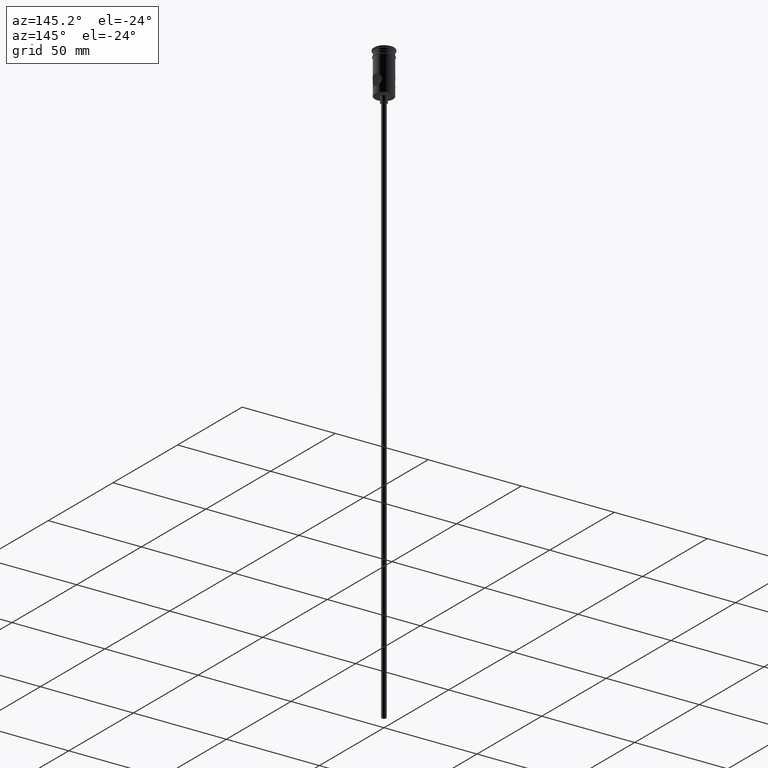
[diagram: clean part render]
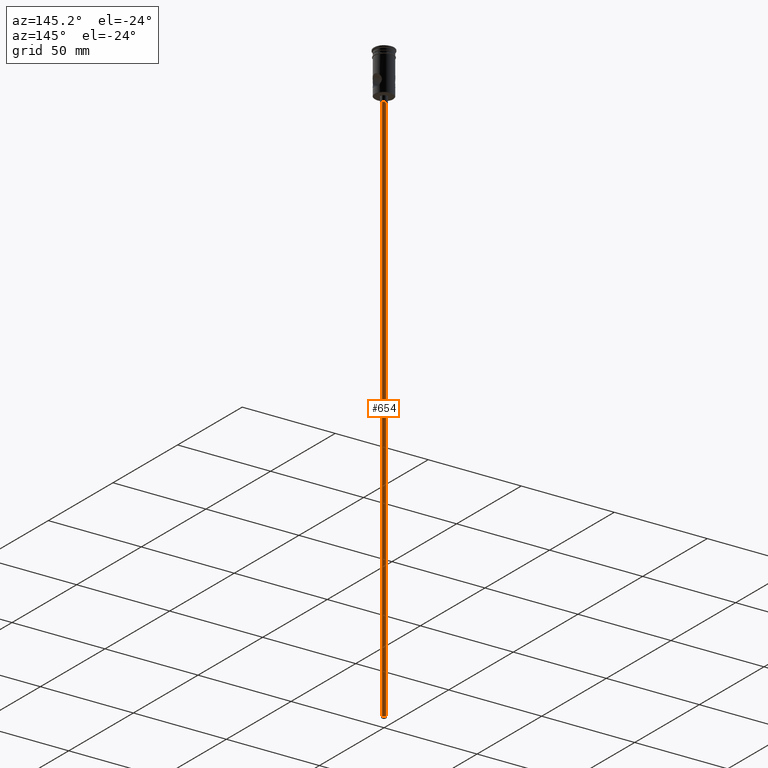
[diagram: same view with one face highlighted and labeled with its STEP entity id]
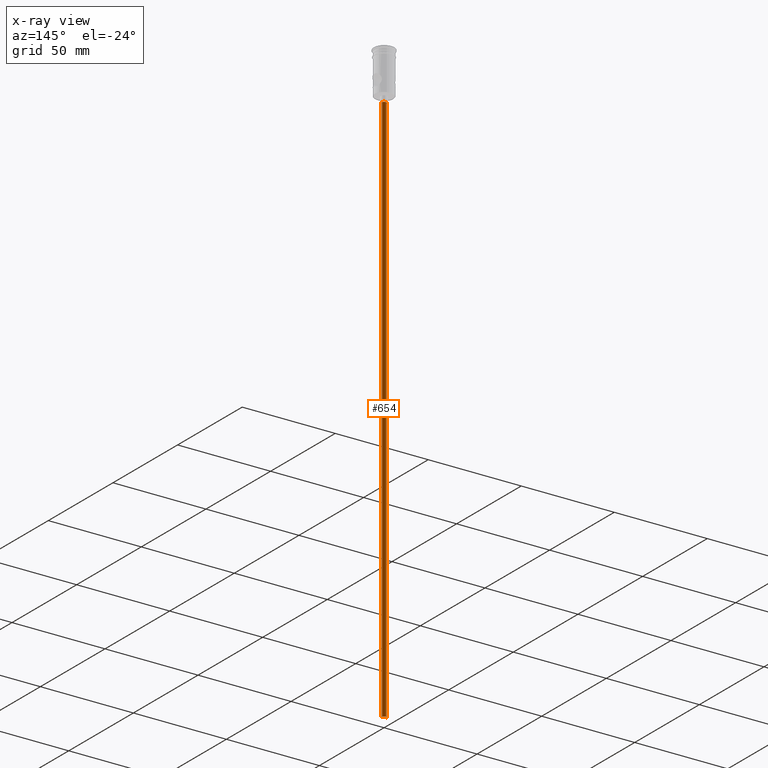
[diagram: x-ray of the same camera — body ghosted, the highlighted face saturated]
A machine part, auxiliary view. The second image highlights one B-rep face of the part: STEP entity #654.
The next image is the same camera in x-ray: the body ghosted, the highlighted face saturated — about 0% of this face is hidden behind the body in this view.
In plain terms, the highlighted cylindrical surface (edge-blend (fillet) strip) has radius 1.25 mm, axis along (-0, -0, 1).
Its self-contained STEP definition (entity closure, byte-faithful):
#20 = ORIENTED_EDGE ( 'NONE', *, *, #1388, .T. ) ;
#37 = DIRECTION ( 'NONE',  ( -0.000000000000000000, -0.000000000000000000, 1.000000000000000000 ) ) ;
#48 = CARTESIAN_POINT ( 'NONE',  ( 1.250000000000000000, 0.000000000000000000, -322.5000000000000000 ) ) ;
#76 = DIRECTION ( 'NONE',  ( 0.000000000000000000, 0.000000000000000000, -1.000000000000000000 ) ) ;
#84 = CYLINDRICAL_SURFACE ( 'NONE', #1190, 1.250000000000000000 ) ;
#99 = VECTOR ( 'NONE', #37, 1000.000000000000000 ) ;
#110 = ORIENTED_EDGE ( 'NONE', *, *, #1271, .F. ) ;
#114 = CARTESIAN_POINT ( 'NONE',  ( -1.250000000000000000, 1.530808498934191571E-16, -322.5000000000000000 ) ) ;
#164 = EDGE_CURVE ( 'NONE', #864, #1247, #537, .T. ) ;
#219 = VERTEX_POINT ( 'NONE', #415 ) ;
#232 = DIRECTION ( 'NONE',  ( -1.000000000000000000, 0.000000000000000000, 0.000000000000000000 ) ) ;
#244 = VECTOR ( 'NONE', #555, 1000.000000000000000 ) ;
#254 = EDGE_CURVE ( 'NONE', #864, #219, #260, .T. ) ;
#260 = LINE ( 'NONE', #114, #244 ) ;
#415 = CARTESIAN_POINT ( 'NONE',  ( -1.250000000000000000, 1.530808498934191571E-16, -25.50000000000000000 ) ) ;
#525 = CARTESIAN_POINT ( 'NONE',  ( 0.000000000000000000, 0.000000000000000000, -322.5000000000000000 ) ) ;
#537 = CIRCLE ( 'NONE', #1355, 1.250000000000000000 ) ;
#555 = DIRECTION ( 'NONE',  ( -0.000000000000000000, -0.000000000000000000, 1.000000000000000000 ) ) ;
#563 = ORIENTED_EDGE ( 'NONE', *, *, #254, .T. ) ;
#650 = CARTESIAN_POINT ( 'NONE',  ( 0.000000000000000000, 0.000000000000000000, -25.50000000000000000 ) ) ;
#654 = ADVANCED_FACE ( 'NONE', ( #1187 ), #84, .T. ) ;
#753 = CARTESIAN_POINT ( 'NONE',  ( 0.000000000000000000, 0.000000000000000000, -322.5000000000000000 ) ) ;
#754 = EDGE_LOOP ( 'NONE', ( #811, #563, #20, #110 ) ) ;
#784 = CIRCLE ( 'NONE', #978, 1.250000000000000000 ) ;
#811 = ORIENTED_EDGE ( 'NONE', *, *, #164, .F. ) ;
#864 = VERTEX_POINT ( 'NONE', #1428 ) ;
#978 = AXIS2_PLACEMENT_3D ( 'NONE', #650, #1107, #232 ) ;
#1032 = LINE ( 'NONE', #48, #99 ) ;
#1083 = DIRECTION ( 'NONE',  ( -1.000000000000000000, 0.000000000000000000, 0.000000000000000000 ) ) ;
#1107 = DIRECTION ( 'NONE',  ( 0.000000000000000000, 0.000000000000000000, -1.000000000000000000 ) ) ;
#1163 = VERTEX_POINT ( 'NONE', #1274 ) ;
#1171 = CARTESIAN_POINT ( 'NONE',  ( 1.250000000000000000, 0.000000000000000000, -322.5000000000000000 ) ) ;
#1176 = DIRECTION ( 'NONE',  ( -0.000000000000000000, -0.000000000000000000, 1.000000000000000000 ) ) ;
#1187 = FACE_OUTER_BOUND ( 'NONE', #754, .T. ) ;
#1190 = AXIS2_PLACEMENT_3D ( 'NONE', #525, #1176, #1417 ) ;
#1247 = VERTEX_POINT ( 'NONE', #1171 ) ;
#1271 = EDGE_CURVE ( 'NONE', #1247, #1163, #1032, .T. ) ;
#1274 = CARTESIAN_POINT ( 'NONE',  ( 1.250000000000000000, 0.000000000000000000, -25.50000000000000000 ) ) ;
#1355 = AXIS2_PLACEMENT_3D ( 'NONE', #753, #76, #1083 ) ;
#1388 = EDGE_CURVE ( 'NONE', #219, #1163, #784, .T. ) ;
#1417 = DIRECTION ( 'NONE',  ( 1.000000000000000000, 0.000000000000000000, 0.000000000000000000 ) ) ;
#1428 = CARTESIAN_POINT ( 'NONE',  ( -1.250000000000000000, 1.530808498934191571E-16, -322.5000000000000000 ) ) ;